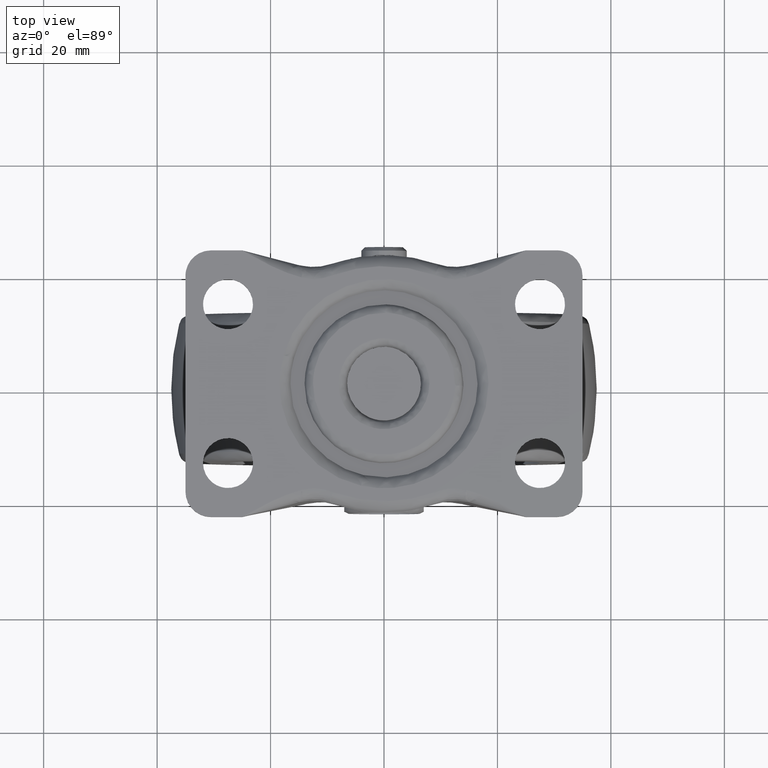
[diagram: clean part render]
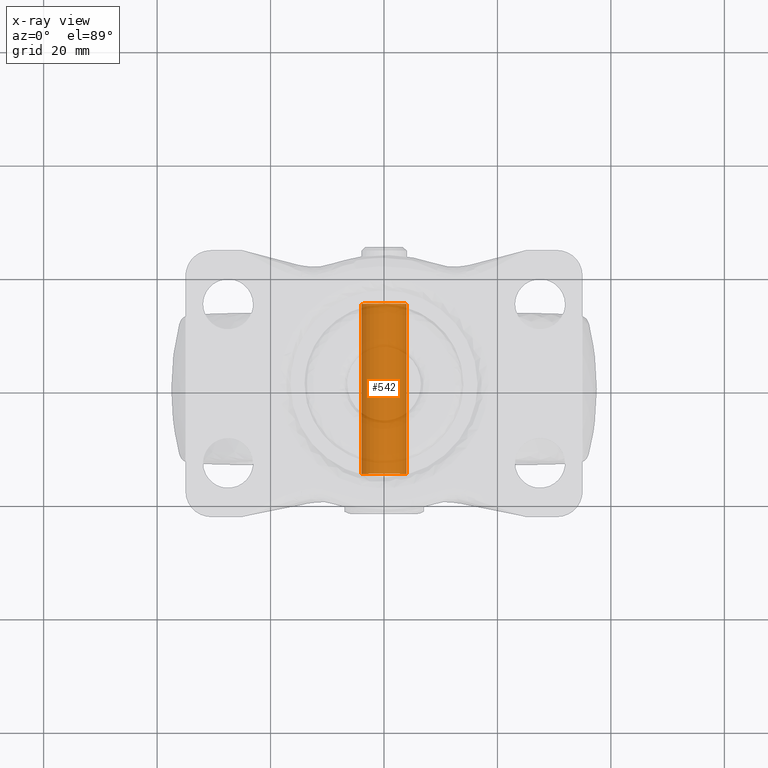
[diagram: x-ray — body ghosted, one internal face saturated and labeled with its STEP entity id]
A machine part, top view, then the same camera in x-ray: the body is ghosted and one INTERNAL B-rep face — a face not visible from any outside direction — is saturated and labeled: STEP entity #542.
In plain terms, the highlighted face is a freeform B-spline surface patch.
Its self-contained STEP definition (entity closure, byte-faithful):
#440=CARTESIAN_POINT('',(3.972038105454666,15.750000000000005,-55.972136938627045));
#441=CARTESIAN_POINT('',(3.985550461794422,15.750000000000007,-55.858458914551917));
#442=CARTESIAN_POINT('',(3.992539193687467,15.750000000000000,-55.744194158139429));
#443=CARTESIAN_POINT('',(4.236733351826894,15.750000000000009,-51.751654964451959));
#444=CARTESIAN_POINT('',(0.244194158139428,15.750000000000000,-51.507460806312537));
#445=CARTESIAN_POINT('',(-3.748345035548039,15.750000000000009,-51.263266648173108));
#446=CARTESIAN_POINT('',(-3.992539193687467,15.750000000000000,-55.255805841860571));
#447=CARTESIAN_POINT('',(3.972038105454666,-15.768750000000006,-55.972136938627045));
#448=CARTESIAN_POINT('',(3.985550461794422,-15.768750000000006,-55.858458914551917));
#449=CARTESIAN_POINT('',(3.992539193687467,-15.768750000000001,-55.744194158139429));
#450=CARTESIAN_POINT('',(4.236733351826894,-15.768749999999997,-51.751654964451959));
#451=CARTESIAN_POINT('',(0.244194158139428,-15.768750000000001,-51.507460806312537));
#452=CARTESIAN_POINT('',(-3.748345035548039,-15.768749999999997,-51.263266648173108));
#453=CARTESIAN_POINT('',(-3.992539193687467,-15.768750000000001,-55.255805841860571));
#461=(BOUNDED_SURFACE()B_SPLINE_SURFACE(2,1,((#440,#447),(#441,#448),(#442,#449),(#443,#450),(#444,#451),(#445,#452),(#446,#453)),.UNSPECIFIED.,.F.,.F.,.U.)B_SPLINE_SURFACE_WITH_KNOTS((3,2,2,3),(2,2),(0.0,0.265096679918781,6.892513677888302,13.519930675857820),(0.0,31.518750000000011),.UNSPECIFIED.)GEOMETRIC_REPRESENTATION_ITEM()RATIONAL_B_SPLINE_SURFACE(((0.977505800795127,0.977505800795127),(0.988284271247462,0.988284271247462),(1.0,1.0),(0.707106781186548,0.707106781186548),(1.0,1.0),(0.707106781186548,0.707106781186548),(1.0,1.0)))REPRESENTATION_ITEM('')SURFACE());
#462=CARTESIAN_POINT('',(3.972038105430887,-15.0,-55.972136938827077));
#463=VERTEX_POINT('',#462);
#464=CARTESIAN_POINT('',(0.0,-15.0,-51.500000000000007));
#465=VERTEX_POINT('',#464);
#466=CARTESIAN_POINT('',(3.972038105430887,-15.0,-55.972136938827077));
#467=CARTESIAN_POINT('',(4.000000000000001,-15.000000000000005,-55.736896478809797));
#468=CARTESIAN_POINT('',(4.0,-15.0,-55.500000000000000));
#469=CARTESIAN_POINT('',(4.000000000000000,-14.999999999999995,-51.500000000000000));
#470=CARTESIAN_POINT('',(0.0,-15.0,-51.500000000000007));
#478=(BOUNDED_CURVE()B_SPLINE_CURVE(2,(#466,#467,#468,#469,#470),.UNSPECIFIED.,.F.,.U.)B_SPLINE_CURVE_WITH_KNOTS((3,2,3),(0.229562473498621,0.250000000000000,0.500000000000000),.UNSPECIFIED.)CURVE()GEOMETRIC_REPRESENTATION_ITEM()RATIONAL_B_SPLINE_CURVE((0.956026754154520,0.976055948313704,1.0,0.707106781186548,1.0))REPRESENTATION_ITEM(''));
#479=EDGE_CURVE('',#463,#465,#478,.T.);
#480=ORIENTED_EDGE('',*,*,#479,.T.);
#481=CARTESIAN_POINT('',(-3.992539193671721,-15.0,-55.255805841603120));
#482=VERTEX_POINT('',#481);
#483=CARTESIAN_POINT('',(0.0,-15.0,-51.500000000000007));
#484=CARTESIAN_POINT('',(-3.762824267136605,-15.000000000000004,-51.500000000000007));
#485=CARTESIAN_POINT('',(-3.992539193671721,-14.999999999999996,-55.255805841603113));
#493=(BOUNDED_CURVE()B_SPLINE_CURVE(2,(#483,#484,#485),.UNSPECIFIED.,.F.,.U.)B_SPLINE_CURVE_WITH_KNOTS((3,3),(0.500000000000000,0.739332962219716),.UNSPECIFIED.)CURVE()GEOMETRIC_REPRESENTATION_ITEM()RATIONAL_B_SPLINE_CURVE((1.0,0.719603993309236,0.976072041625511))REPRESENTATION_ITEM(''));
#494=EDGE_CURVE('',#465,#482,#493,.T.);
#495=ORIENTED_EDGE('',*,*,#494,.T.);
#496=CARTESIAN_POINT('',(-3.992539193671721,15.0,-55.255805841603113));
#497=VERTEX_POINT('',#496);
#498=CARTESIAN_POINT('',(-3.992539193671721,15.0,-55.255805841603113));
#499=CARTESIAN_POINT('',(-3.992539193671721,-15.0,-55.255805841603120));
#500=QUASI_UNIFORM_CURVE('',1,(#498,#499),.UNSPECIFIED.,.F.,.U.);
#501=EDGE_CURVE('',#497,#482,#500,.T.);
#502=ORIENTED_EDGE('',*,*,#501,.F.);
#503=CARTESIAN_POINT('',(0.0,15.0,-51.500000000000007));
#504=VERTEX_POINT('',#503);
#505=CARTESIAN_POINT('',(0.0,15.0,-51.500000000000007));
#506=CARTESIAN_POINT('',(-3.762824267136605,15.000000000000004,-51.500000000000007));
#507=CARTESIAN_POINT('',(-3.992539193671721,14.999999999999996,-55.255805841603113));
#515=(BOUNDED_CURVE()B_SPLINE_CURVE(2,(#505,#506,#507),.UNSPECIFIED.,.F.,.U.)B_SPLINE_CURVE_WITH_KNOTS((3,3),(0.500000000000000,0.739332962219716),.UNSPECIFIED.)CURVE()GEOMETRIC_REPRESENTATION_ITEM()RATIONAL_B_SPLINE_CURVE((1.0,0.719603993309236,0.976072041625511))REPRESENTATION_ITEM(''));
#516=EDGE_CURVE('',#504,#497,#515,.T.);
#517=ORIENTED_EDGE('',*,*,#516,.F.);
#518=CARTESIAN_POINT('',(3.972038105430888,15.0,-55.972136938827077));
#519=VERTEX_POINT('',#518);
#520=CARTESIAN_POINT('',(3.972038105430887,15.000000000000002,-55.972136938827084));
#521=CARTESIAN_POINT('',(4.000000000000001,14.999999999999998,-55.736896478809797));
#522=CARTESIAN_POINT('',(4.0,15.0,-55.500000000000000));
#523=CARTESIAN_POINT('',(4.000000000000000,14.999999999999995,-51.500000000000000));
#524=CARTESIAN_POINT('',(0.0,15.0,-51.500000000000007));
#532=(BOUNDED_CURVE()B_SPLINE_CURVE(2,(#520,#521,#522,#523,#524),.UNSPECIFIED.,.F.,.U.)B_SPLINE_CURVE_WITH_KNOTS((3,2,3),(0.229562473498622,0.250000000000000,0.500000000000000),.UNSPECIFIED.)CURVE()GEOMETRIC_REPRESENTATION_ITEM()RATIONAL_B_SPLINE_CURVE((0.956026754154521,0.976055948313704,1.0,0.707106781186548,1.0))REPRESENTATION_ITEM(''));
#533=EDGE_CURVE('',#519,#504,#532,.T.);
#534=ORIENTED_EDGE('',*,*,#533,.F.);
#535=CARTESIAN_POINT('',(3.972038105430888,15.0,-55.972136938827077));
#536=CARTESIAN_POINT('',(3.972038105430887,-15.0,-55.972136938827077));
#537=QUASI_UNIFORM_CURVE('',1,(#535,#536),.UNSPECIFIED.,.F.,.U.);
#538=EDGE_CURVE('',#519,#463,#537,.T.);
#539=ORIENTED_EDGE('',*,*,#538,.T.);
#540=EDGE_LOOP('',(#480,#495,#502,#517,#534,#539));
#541=FACE_OUTER_BOUND('',#540,.T.);
#542=ADVANCED_FACE('',(#541),#461,.F.);